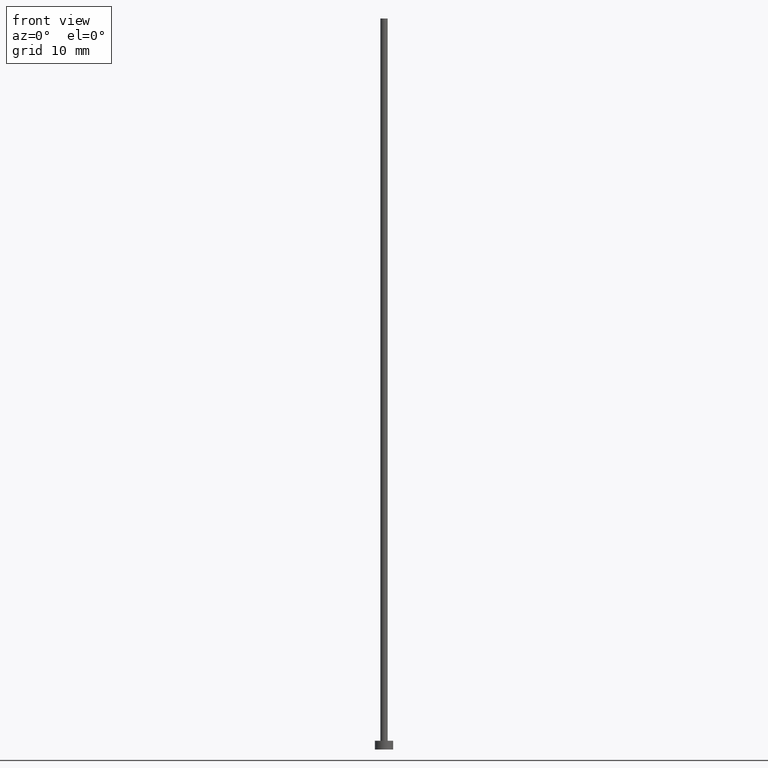
[diagram: clean part render]
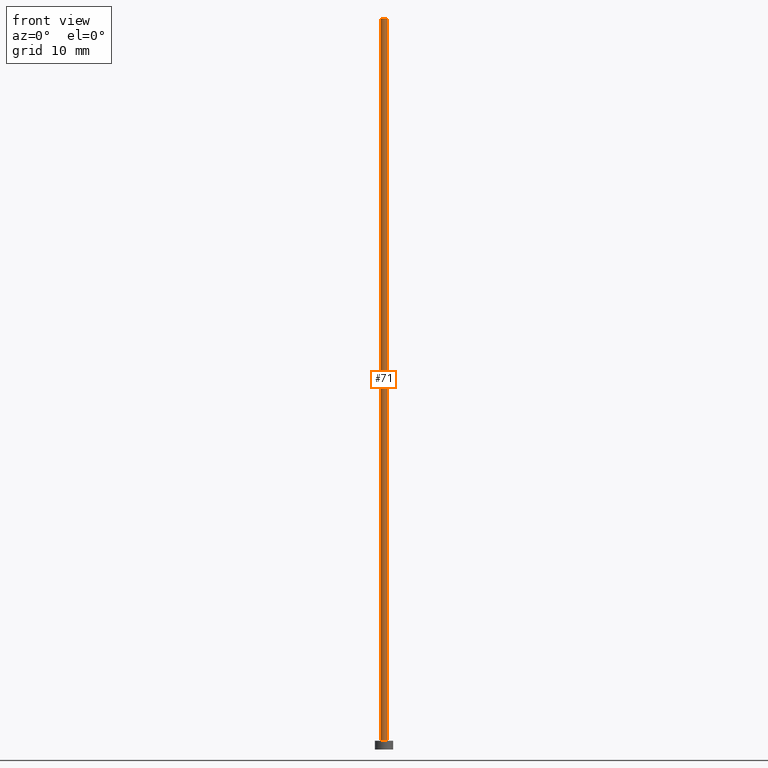
[diagram: same view with one face highlighted and labeled with its STEP entity id]
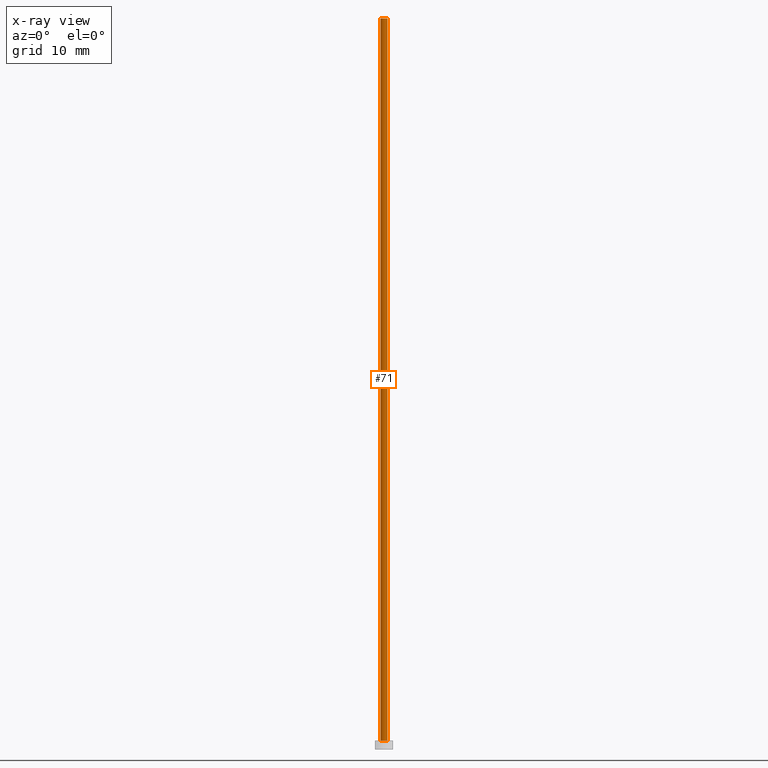
[diagram: x-ray of the same camera — body ghosted, the highlighted face saturated]
A machine part, front view. The second image highlights one B-rep face of the part: STEP entity #71.
The next image is the same camera in x-ray: the body ghosted, the highlighted face saturated — about 0% of this face is hidden behind the body in this view.
In plain terms, the highlighted cylindrical surface (edge-blend (fillet) strip) has radius 0.5 mm, axis along (-0, -0, -1).
Its self-contained STEP definition (entity closure, byte-faithful):
#8 = VECTOR ( 'NONE', #64, 1000.000000000000000 ) ;
#15 = DIRECTION ( 'NONE',  ( -0.000000000000000000, -0.000000000000000000, -1.000000000000000000 ) ) ;
#39 = CARTESIAN_POINT ( 'NONE',  ( 0.5000000000000000000, 6.123233995736766036E-17, 100.0000000000000000 ) ) ;
#42 = DIRECTION ( 'NONE',  ( 0.000000000000000000, 0.000000000000000000, 1.000000000000000000 ) ) ;
#53 = AXIS2_PLACEMENT_3D ( 'NONE', #163, #60, #141 ) ;
#54 = VERTEX_POINT ( 'NONE', #97 ) ;
#55 = ORIENTED_EDGE ( 'NONE', *, *, #136, .F. ) ;
#57 = FACE_OUTER_BOUND ( 'NONE', #131, .T. ) ;
#60 = DIRECTION ( 'NONE',  ( 0.000000000000000000, 0.000000000000000000, 1.000000000000000000 ) ) ;
#64 = DIRECTION ( 'NONE',  ( -0.000000000000000000, -0.000000000000000000, -1.000000000000000000 ) ) ;
#71 = ADVANCED_FACE ( 'NONE', ( #57 ), #138, .T. ) ;
#95 = VERTEX_POINT ( 'NONE', #178 ) ;
#96 = CIRCLE ( 'NONE', #164, 0.5000000000000000000 ) ;
#97 = CARTESIAN_POINT ( 'NONE',  ( 0.5000000000000000000, 6.123233995736766036E-17, 100.0000000000000000 ) ) ;
#98 = DIRECTION ( 'NONE',  ( -1.000000000000000000, 0.000000000000000000, 0.000000000000000000 ) ) ;
#105 = CARTESIAN_POINT ( 'NONE',  ( 0.000000000000000000, 0.000000000000000000, 1.199999999999999956 ) ) ;
#113 = AXIS2_PLACEMENT_3D ( 'NONE', #119, #15, #98 ) ;
#117 = ORIENTED_EDGE ( 'NONE', *, *, #118, .T. ) ;
#118 = EDGE_CURVE ( 'NONE', #95, #159, #205, .T. ) ;
#119 = CARTESIAN_POINT ( 'NONE',  ( 0.000000000000000000, 0.000000000000000000, 100.0000000000000000 ) ) ;
#120 = ORIENTED_EDGE ( 'NONE', *, *, #183, .T. ) ;
#125 = CARTESIAN_POINT ( 'NONE',  ( 0.5000000000000000000, 6.123233995736766036E-17, 1.199999999999999956 ) ) ;
#131 = EDGE_LOOP ( 'NONE', ( #55, #176, #117, #120 ) ) ;
#136 = EDGE_CURVE ( 'NONE', #54, #139, #242, .T. ) ;
#138 = CYLINDRICAL_SURFACE ( 'NONE', #113, 0.5000000000000000000 ) ;
#139 = VERTEX_POINT ( 'NONE', #125 ) ;
#141 = DIRECTION ( 'NONE',  ( 1.000000000000000000, 0.000000000000000000, 0.000000000000000000 ) ) ;
#144 = CARTESIAN_POINT ( 'NONE',  ( -0.5000000000000000000, 0.000000000000000000, 100.0000000000000000 ) ) ;
#150 = VECTOR ( 'NONE', #181, 1000.000000000000000 ) ;
#157 = CIRCLE ( 'NONE', #53, 0.5000000000000000000 ) ;
#159 = VERTEX_POINT ( 'NONE', #187 ) ;
#163 = CARTESIAN_POINT ( 'NONE',  ( 0.000000000000000000, 0.000000000000000000, 100.0000000000000000 ) ) ;
#164 = AXIS2_PLACEMENT_3D ( 'NONE', #105, #42, #223 ) ;
#176 = ORIENTED_EDGE ( 'NONE', *, *, #210, .F. ) ;
#178 = CARTESIAN_POINT ( 'NONE',  ( -0.5000000000000000000, 0.000000000000000000, 100.0000000000000000 ) ) ;
#181 = DIRECTION ( 'NONE',  ( -0.000000000000000000, -0.000000000000000000, -1.000000000000000000 ) ) ;
#183 = EDGE_CURVE ( 'NONE', #159, #139, #96, .T. ) ;
#187 = CARTESIAN_POINT ( 'NONE',  ( -0.5000000000000000000, 0.000000000000000000, 1.199999999999999956 ) ) ;
#205 = LINE ( 'NONE', #144, #150 ) ;
#210 = EDGE_CURVE ( 'NONE', #95, #54, #157, .T. ) ;
#223 = DIRECTION ( 'NONE',  ( 1.000000000000000000, 0.000000000000000000, 0.000000000000000000 ) ) ;
#242 = LINE ( 'NONE', #39, #8 ) ;